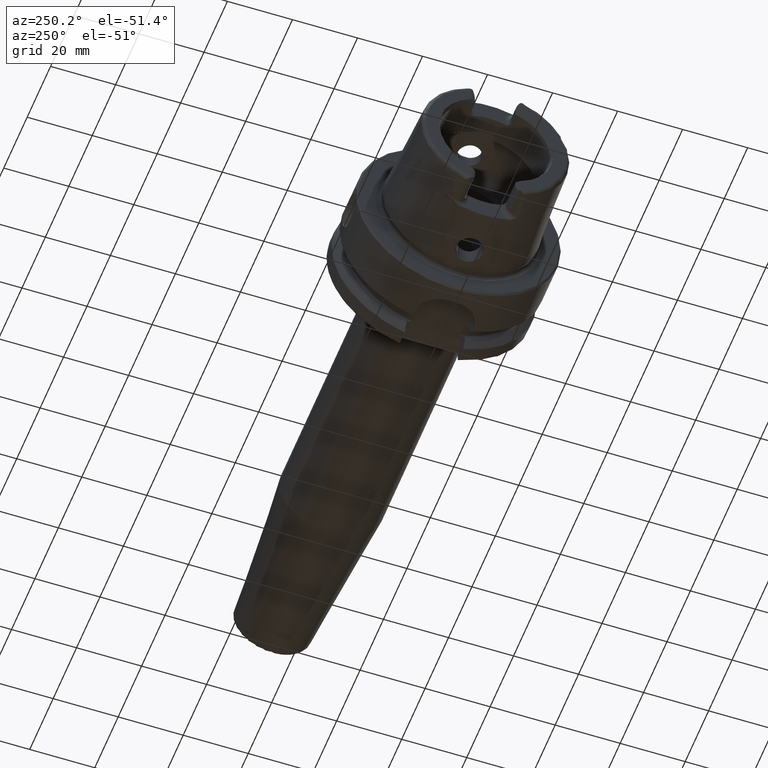
[diagram: clean part render]
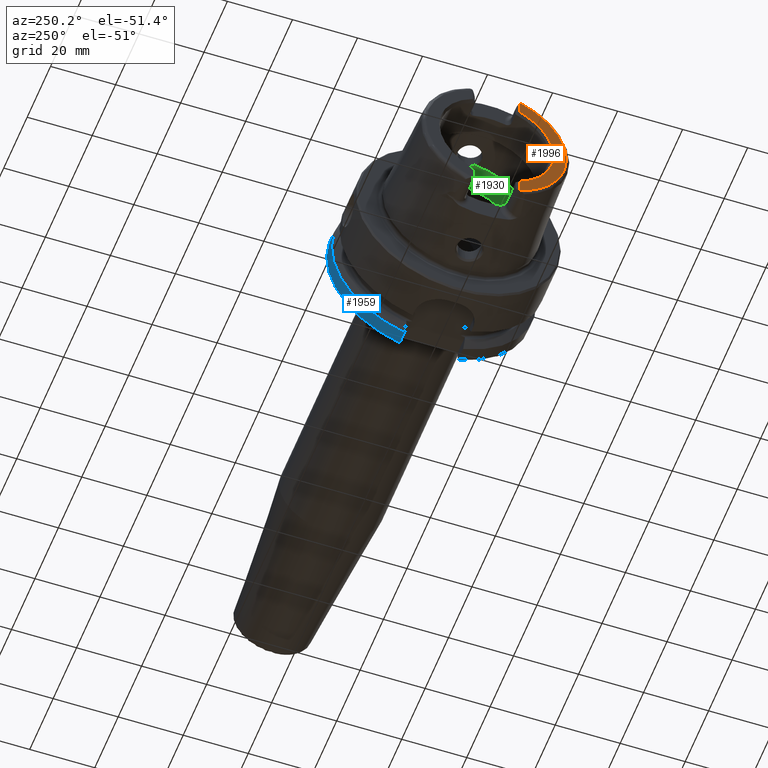
[diagram: same view with three faces highlighted in distinct colors, each labeled with its STEP entity id]
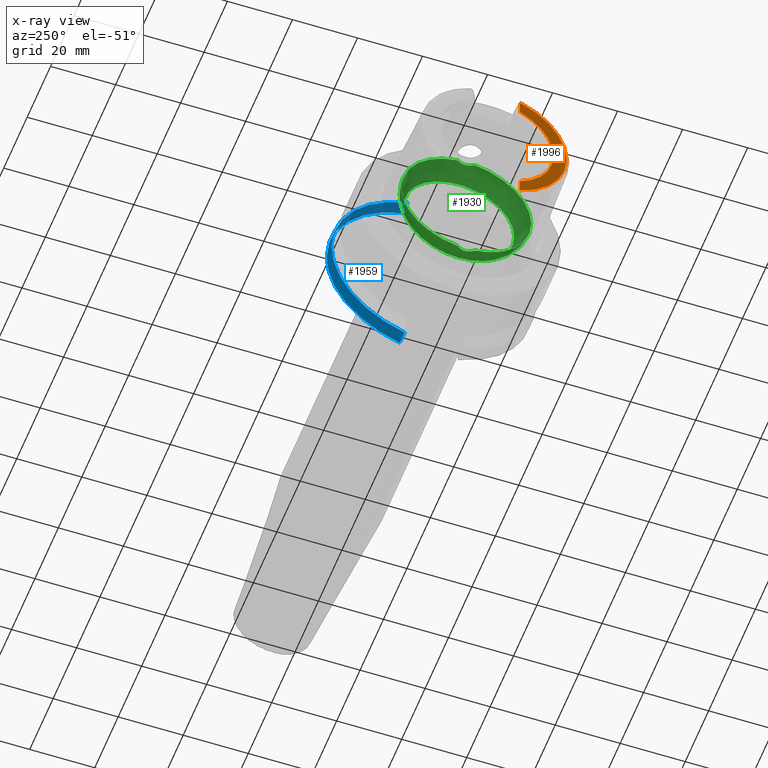
[diagram: x-ray of the same camera — body ghosted, the three highlighted faces saturated]
A machine part, auxiliary view with three faces highlighted in distinct colors.
The next image is the same camera in x-ray (body ghosted, the three faces saturated) — at least one of them is partly hidden behind the body in this view.
Their STEP definitions:

[orange] entity #1996 — the highlighted planar face has unit normal (-1, 0, 0).
#159=PLANE('',#2236);
#282=FACE_OUTER_BOUND('',#403,.T.);
#403=EDGE_LOOP('',(#1783,#1784,#1785,#1786,#1787,#1788));
#439=LINE('',#2939,#543);
#452=LINE('',#3052,#556);
#543=VECTOR('',#2356,10.);
#556=VECTOR('',#2403,10.);
#654=CIRCLE('',#2073,2.88);
#658=CIRCLE('',#2088,2.88);
#731=CIRCLE('',#2237,21.5760400159857);
#732=CIRCLE('',#2238,17.5773502691896);
#780=VERTEX_POINT('',#2936);
#781=VERTEX_POINT('',#2938);
#788=VERTEX_POINT('',#2971);
#801=VERTEX_POINT('',#3045);
#804=VERTEX_POINT('',#3050);
#807=VERTEX_POINT('',#3060);
#985=EDGE_CURVE('',#780,#781,#439,.T.);
#994=EDGE_CURVE('',#780,#788,#654,.T.);
#1013=EDGE_CURVE('',#804,#801,#452,.T.);
#1017=EDGE_CURVE('',#807,#801,#658,.T.);
#1226=EDGE_CURVE('',#807,#788,#731,.T.);
#1227=EDGE_CURVE('',#781,#804,#732,.T.);
#1783=ORIENTED_EDGE('',*,*,#985,.F.);
#1784=ORIENTED_EDGE('',*,*,#994,.T.);
#1785=ORIENTED_EDGE('',*,*,#1226,.F.);
#1786=ORIENTED_EDGE('',*,*,#1017,.T.);
#1787=ORIENTED_EDGE('',*,*,#1013,.F.);
#1788=ORIENTED_EDGE('',*,*,#1227,.F.);
#1996=ADVANCED_FACE('',(#282),#159,.T.);
#2073=AXIS2_PLACEMENT_3D('',#2984,#2368,#2369);
#2088=AXIS2_PLACEMENT_3D('',#3061,#2411,#2412);
#2236=AXIS2_PLACEMENT_3D('',#4242,#2773,#2774);
#2237=AXIS2_PLACEMENT_3D('',#4243,#2775,#2776);
#2238=AXIS2_PLACEMENT_3D('',#4244,#2777,#2778);
#2356=DIRECTION('',(0.,0.,1.));
#2368=DIRECTION('center_axis',(-1.,0.,0.));
#2369=DIRECTION('ref_axis',(0.,-1.,0.));
#2403=DIRECTION('',(0.,1.58830189502884E-16,1.));
#2411=DIRECTION('center_axis',(-1.,0.,0.));
#2412=DIRECTION('ref_axis',(0.,0.453346760926795,-0.891334232685576));
#2773=DIRECTION('center_axis',(-1.,0.,0.));
#2774=DIRECTION('ref_axis',(0.,0.,1.));
#2775=DIRECTION('center_axis',(1.,0.,0.));
#2776=DIRECTION('ref_axis',(0.,0.,-1.));
#2777=DIRECTION('center_axis',(-1.,0.,0.));
#2778=DIRECTION('ref_axis',(0.,-1.,0.));
#2936=CARTESIAN_POINT('',(-32.,-7.27,-20.1717424229271));
#2938=CARTESIAN_POINT('',(-32.,-7.27,-16.003447831195));
#2939=CARTESIAN_POINT('',(-32.,-7.27,-8.995));
#2971=CARTESIAN_POINT('',(-32.,-7.39118810947246,-20.2705658801576));
#2984=CARTESIAN_POINT('Origin',(-32.,-9.15,-17.99));
#3045=CARTESIAN_POINT('',(-32.,-7.26999999999999,20.1717424229271));
#3050=CARTESIAN_POINT('',(-32.,-7.26999999999999,16.003447831195));
#3052=CARTESIAN_POINT('',(-32.,-7.27,5.5));
#3060=CARTESIAN_POINT('',(-32.,-7.39118810947246,20.2705658801576));
#3061=CARTESIAN_POINT('Origin',(-32.,-9.15,17.99));
#4242=CARTESIAN_POINT('Origin',(-32.,21.5760400159857,0.));
#4243=CARTESIAN_POINT('Origin',(-32.,0.,0.));
#4244=CARTESIAN_POINT('Origin',(-32.,0.,0.));

[blue] entity #1959 — the highlighted cylindrical surface (partial cylindrical patch) has radius 31.5 mm, axis along (1, 0, 0).
#245=FACE_OUTER_BOUND('',#365,.T.);
#365=EDGE_LOOP('',(#1582,#1583,#1584,#1585));
#488=LINE('',#3858,#592);
#502=LINE('',#4038,#606);
#592=VECTOR('',#2561,10.);
#606=VECTOR('',#2623,10.);
#699=CIRCLE('',#2166,31.5);
#701=CIRCLE('',#2170,31.5);
#881=VERTEX_POINT('',#3834);
#885=VERTEX_POINT('',#3854);
#910=VERTEX_POINT('',#4021);
#911=VERTEX_POINT('',#4036);
#1126=EDGE_CURVE('',#881,#885,#488,.T.);
#1162=EDGE_CURVE('',#881,#910,#699,.T.);
#1165=EDGE_CURVE('',#885,#911,#701,.T.);
#1166=EDGE_CURVE('',#911,#910,#502,.T.);
#1582=ORIENTED_EDGE('',*,*,#1126,.T.);
#1583=ORIENTED_EDGE('',*,*,#1165,.T.);
#1584=ORIENTED_EDGE('',*,*,#1166,.T.);
#1585=ORIENTED_EDGE('',*,*,#1162,.F.);
#1884=CYLINDRICAL_SURFACE('',#2169,31.5);
#1959=ADVANCED_FACE('',(#245),#1884,.T.);
#2166=AXIS2_PLACEMENT_3D('',#4022,#2613,#2614);
#2169=AXIS2_PLACEMENT_3D('',#4035,#2619,#2620);
#2170=AXIS2_PLACEMENT_3D('',#4037,#2621,#2622);
#2561=DIRECTION('',(-1.,0.,0.));
#2613=DIRECTION('center_axis',(1.,0.,0.));
#2614=DIRECTION('ref_axis',(0.,0.,-1.));
#2619=DIRECTION('center_axis',(1.,0.,0.));
#2620=DIRECTION('ref_axis',(0.,1.,0.));
#2621=DIRECTION('center_axis',(1.,0.,0.));
#2622=DIRECTION('ref_axis',(0.,0.,-1.));
#2623=DIRECTION('',(1.,0.,0.));
#3834=CARTESIAN_POINT('',(25.5,9.,-30.1869176962472));
#3854=CARTESIAN_POINT('',(21.3774990747593,9.,-30.1869176962472));
#3858=CARTESIAN_POINT('',(23.4387495373797,9.,-30.1869176962472));
#4021=CARTESIAN_POINT('',(25.5,8.,30.4671954731642));
#4022=CARTESIAN_POINT('Origin',(25.5,0.,0.));
#4035=CARTESIAN_POINT('Origin',(23.4387495373797,0.,0.));
#4036=CARTESIAN_POINT('',(21.3774990747593,8.,30.4671954731642));
#4037=CARTESIAN_POINT('Origin',(21.3774990747593,0.,0.));
#4038=CARTESIAN_POINT('',(23.4387495373797,8.,30.4671954731642));

[green] entity #1930 — the highlighted toroidal blend (fillet) surface has major radius 12 mm and minor (blend) radius 8 mm.
#49=B_SPLINE_CURVE_WITH_KNOTS('',3,(#3396,#3397,#3398,#3399,#3400,#3401,
#3402,#3403,#3404,#3405,#3406,#3407),.UNSPECIFIED.,.F.,.F.,(4,2,2,2,2,4),
(-0.560647090003115,-0.432465132423936,-0.371738630353782,-0.32053783623797,
-0.287500355516274,-0.280385270121909),.UNSPECIFIED.);
#51=B_SPLINE_CURVE_WITH_KNOTS('',3,(#3440,#3441,#3442,#3443,#3444,#3445,
#3446,#3447,#3448,#3449),.UNSPECIFIED.,.F.,.F.,(4,2,2,2,4),(-0.280385270121909,
-0.256917987419631,-0.21744735037608,-0.138661357565599,0.),
 .UNSPECIFIED.);
#54=B_SPLINE_CURVE_WITH_KNOTS('',3,(#3565,#3566,#3567,#3568,#3569,#3570,
#3571,#3572,#3573,#3574,#3575,#3576),.UNSPECIFIED.,.F.,.F.,(4,2,2,2,2,4),
(-0.560647090003256,-0.432465132424011,-0.371738630353825,-0.32053783623799,
-0.287500355516289,-0.280385270121924),.UNSPECIFIED.);
#56=B_SPLINE_CURVE_WITH_KNOTS('',3,(#3609,#3610,#3611,#3612,#3613,#3614,
#3615,#3616,#3617,#3618),.UNSPECIFIED.,.F.,.F.,(4,2,2,2,4),(-0.280385270121924,
-0.256917987419636,-0.217447350376074,-0.138661357565593,0.),
 .UNSPECIFIED.);
#166=TOROIDAL_SURFACE('',#2112,12.,8.);
#216=FACE_OUTER_BOUND('',#336,.T.);
#336=EDGE_LOOP('',(#1423,#1424,#1425,#1426,#1427,#1428,#1429,#1430,#1431,
#1432,#1433));
#668=CIRCLE('',#2107,20.);
#671=CIRCLE('',#2110,20.);
#672=CIRCLE('',#2111,20.);
#673=CIRCLE('',#2113,17.);
#674=CIRCLE('',#2114,17.);
#675=CIRCLE('',#2115,8.);
#833=VERTEX_POINT('',#3393);
#834=VERTEX_POINT('',#3395);
#835=VERTEX_POINT('',#3408);
#838=VERTEX_POINT('',#3563);
#839=VERTEX_POINT('',#3564);
#840=VERTEX_POINT('',#3577);
#841=VERTEX_POINT('',#3621);
#844=VERTEX_POINT('',#3631);
#845=VERTEX_POINT('',#3632);
#1053=EDGE_CURVE('',#834,#833,#49,.T.);
#1055=EDGE_CURVE('',#833,#835,#51,.T.);
#1059=EDGE_CURVE('',#838,#839,#54,.T.);
#1061=EDGE_CURVE('',#839,#840,#56,.T.);
#1063=EDGE_CURVE('',#841,#838,#668,.T.);
#1067=EDGE_CURVE('',#835,#841,#671,.T.);
#1068=EDGE_CURVE('',#840,#834,#672,.T.);
#1069=EDGE_CURVE('',#844,#845,#673,.T.);
#1070=EDGE_CURVE('',#845,#844,#674,.T.);
#1071=EDGE_CURVE('',#845,#833,#675,.T.);
#1423=ORIENTED_EDGE('',*,*,#1069,.F.);
#1424=ORIENTED_EDGE('',*,*,#1070,.F.);
#1425=ORIENTED_EDGE('',*,*,#1071,.T.);
#1426=ORIENTED_EDGE('',*,*,#1055,.T.);
#1427=ORIENTED_EDGE('',*,*,#1067,.T.);
#1428=ORIENTED_EDGE('',*,*,#1063,.T.);
#1429=ORIENTED_EDGE('',*,*,#1059,.T.);
#1430=ORIENTED_EDGE('',*,*,#1061,.T.);
#1431=ORIENTED_EDGE('',*,*,#1068,.T.);
#1432=ORIENTED_EDGE('',*,*,#1053,.T.);
#1433=ORIENTED_EDGE('',*,*,#1071,.F.);
#1930=ADVANCED_FACE('',(#216),#166,.F.);
#2107=AXIS2_PLACEMENT_3D('',#3622,#2459,#2460);
#2110=AXIS2_PLACEMENT_3D('',#3628,#2466,#2467);
#2111=AXIS2_PLACEMENT_3D('',#3629,#2468,#2469);
#2112=AXIS2_PLACEMENT_3D('',#3630,#2470,#2471);
#2113=AXIS2_PLACEMENT_3D('',#3633,#2472,#2473);
#2114=AXIS2_PLACEMENT_3D('',#3634,#2474,#2475);
#2115=AXIS2_PLACEMENT_3D('',#3635,#2476,#2477);
#2459=DIRECTION('center_axis',(-1.,0.,0.));
#2460=DIRECTION('ref_axis',(0.,0.,1.));
#2466=DIRECTION('center_axis',(-1.,0.,0.));
#2467=DIRECTION('ref_axis',(0.,0.,1.));
#2468=DIRECTION('center_axis',(-1.,0.,0.));
#2469=DIRECTION('ref_axis',(0.,0.,1.));
#2470=DIRECTION('center_axis',(-1.,0.,0.));
#2471=DIRECTION('ref_axis',(0.,0.,1.));
#2472=DIRECTION('center_axis',(-1.,0.,0.));
#2473=DIRECTION('ref_axis',(0.,0.,1.));
#2474=DIRECTION('center_axis',(-1.,0.,0.));
#2475=DIRECTION('ref_axis',(0.,0.,1.));
#2476=DIRECTION('center_axis',(0.,1.,-1.22464679914735E-16));
#2477=DIRECTION('ref_axis',(0.,-1.22464679914735E-16,-1.));
#3393=CARTESIAN_POINT('',(-5.25,3.07683831259085E-16,-19.9378825251564));
#3395=CARTESIAN_POINT('',(-6.2449979983984,2.54410376580264,-19.8375284758165));
#3396=CARTESIAN_POINT('Ctrl Pts',(-6.2449979983984,2.54410376580263,-19.8375284758165));
#3397=CARTESIAN_POINT('Ctrl Pts',(-5.9563832733696,2.23156378381208,-19.877610794847));
#3398=CARTESIAN_POINT('Ctrl Pts',(-5.72238184052007,1.87139505615745,-19.9007586679726));
#3399=CARTESIAN_POINT('Ctrl Pts',(-5.47415257397377,1.29299577523533,-19.9221291461079));
#3400=CARTESIAN_POINT('Ctrl Pts',(-5.40951125063364,1.10084807786171,-19.9269865934584));
#3401=CARTESIAN_POINT('Ctrl Pts',(-5.31953029252225,0.738763665580492,-19.9333991732415));
#3402=CARTESIAN_POINT('Ctrl Pts',(-5.28971989928313,0.57048989328573,-19.9353426103026));
#3403=CARTESIAN_POINT('Ctrl Pts',(-5.25970604483208,0.291260075331645,-19.9372753146995));
#3404=CARTESIAN_POINT('Ctrl Pts',(-5.25276504295341,0.181279004510485,-19.9377089305339));
#3405=CARTESIAN_POINT('Ctrl Pts',(-5.25022501552319,0.0474369436209427,
-19.9378684144199));
#3406=CARTESIAN_POINT('Ctrl Pts',(-5.25,0.0237178817918345,-19.9378825251564));
#3407=CARTESIAN_POINT('Ctrl Pts',(-5.25,1.73633857888389E-16,-19.9378825251564));
#3408=CARTESIAN_POINT('',(-6.2449979983984,-2.54410376580264,-19.8375284758165));
#3440=CARTESIAN_POINT('Ctrl Pts',(-5.25,1.73633857888389E-16,-19.9378825251564));
#3441=CARTESIAN_POINT('Ctrl Pts',(-5.25,-0.0782273446147222,-19.9378825251564));
#3442=CARTESIAN_POINT('Ctrl Pts',(-5.25244785081342,-0.15644185230388,-19.9377296492436));
#3443=CARTESIAN_POINT('Ctrl Pts',(-5.26557067654327,-0.365860616871457,
-19.9368989370107));
#3444=CARTESIAN_POINT('Ctrl Pts',(-5.2807081654794,-0.496671474530444,-19.9359382432917));
#3445=CARTESIAN_POINT('Ctrl Pts',(-5.34656166936447,-0.885366242555149,
-19.9315392091305));
#3446=CARTESIAN_POINT('Ctrl Pts',(-5.41752174824152,-1.13897710923821,-19.9266508951874));
#3447=CARTESIAN_POINT('Ctrl Pts',(-5.68473945553282,-1.81246400136134,-19.9044561094296));
#3448=CARTESIAN_POINT('Ctrl Pts',(-5.93280828188796,-2.20603449935731,-19.880884849314));
#3449=CARTESIAN_POINT('Ctrl Pts',(-6.2449979983984,-2.54410376580263,-19.8375284758165));
#3563=CARTESIAN_POINT('',(-6.2449979983984,-2.54410376580264,19.8375284758165));
#3564=CARTESIAN_POINT('',(-5.25,4.81156178856766E-16,19.9378825251564));
#3565=CARTESIAN_POINT('Ctrl Pts',(-6.2449979983984,-2.54410376580264,19.8375284758165));
#3566=CARTESIAN_POINT('Ctrl Pts',(-5.9563832733696,-2.23156378381209,19.877610794847));
#3567=CARTESIAN_POINT('Ctrl Pts',(-5.72238184052007,-1.87139505615746,19.9007586679726));
#3568=CARTESIAN_POINT('Ctrl Pts',(-5.47415257397376,-1.29299577523533,19.9221291461079));
#3569=CARTESIAN_POINT('Ctrl Pts',(-5.40951125063363,-1.10084807786172,19.9269865934584));
#3570=CARTESIAN_POINT('Ctrl Pts',(-5.31953029252225,-0.738763665580501,
19.9333991732415));
#3571=CARTESIAN_POINT('Ctrl Pts',(-5.28971989928313,-0.570489893285745,
19.9353426103026));
#3572=CARTESIAN_POINT('Ctrl Pts',(-5.25970604483207,-0.291260075331669,
19.9372753146995));
#3573=CARTESIAN_POINT('Ctrl Pts',(-5.2527650429534,-0.181279004510531,19.9377089305339));
#3574=CARTESIAN_POINT('Ctrl Pts',(-5.25022501552319,-0.0474369436209401,
19.9378684144199));
#3575=CARTESIAN_POINT('Ctrl Pts',(-5.25,-0.0237178817918311,19.9378825251564));
#3576=CARTESIAN_POINT('Ctrl Pts',(-5.25,5.15920899939407E-16,19.9378825251564));
#3577=CARTESIAN_POINT('',(-6.2449979983984,2.54410376580264,19.8375284758165));
#3609=CARTESIAN_POINT('Ctrl Pts',(-5.25,5.15920899939407E-16,19.9378825251564));
#3610=CARTESIAN_POINT('Ctrl Pts',(-5.25,0.0782273446147462,19.9378825251564));
#3611=CARTESIAN_POINT('Ctrl Pts',(-5.25244785081342,0.156441852303891,19.9377296492436));
#3612=CARTESIAN_POINT('Ctrl Pts',(-5.26557067654326,0.36586061687142,19.9368989370107));
#3613=CARTESIAN_POINT('Ctrl Pts',(-5.28070816547939,0.496671474530425,19.9359382432917));
#3614=CARTESIAN_POINT('Ctrl Pts',(-5.34656166936446,0.885366242555101,19.9315392091305));
#3615=CARTESIAN_POINT('Ctrl Pts',(-5.41752174824151,1.13897710923819,19.9266508951874));
#3616=CARTESIAN_POINT('Ctrl Pts',(-5.68473945553283,1.81246400136138,19.9044561094296));
#3617=CARTESIAN_POINT('Ctrl Pts',(-5.93280828188797,2.20603449935733,19.880884849314));
#3618=CARTESIAN_POINT('Ctrl Pts',(-6.2449979983984,2.54410376580264,19.8375284758165));
#3621=CARTESIAN_POINT('',(-6.2449979983984,-20.,2.44929359829471E-15));
#3622=CARTESIAN_POINT('Origin',(-6.2449979983984,0.,0.));
#3628=CARTESIAN_POINT('Origin',(-6.2449979983984,0.,0.));
#3629=CARTESIAN_POINT('Origin',(-6.2449979983984,0.,0.));
#3630=CARTESIAN_POINT('Origin',(-6.2449979983984,0.,0.));
#3631=CARTESIAN_POINT('',(0.,-17.,2.0818995585505E-15));
#3632=CARTESIAN_POINT('',(0.,-2.0818995585505E-15,-17.));
#3633=CARTESIAN_POINT('Origin',(0.,0.,0.));
#3634=CARTESIAN_POINT('Origin',(0.,0.,0.));
#3635=CARTESIAN_POINT('Origin',(-6.2449979983984,-1.46957615897682E-15,
-12.));